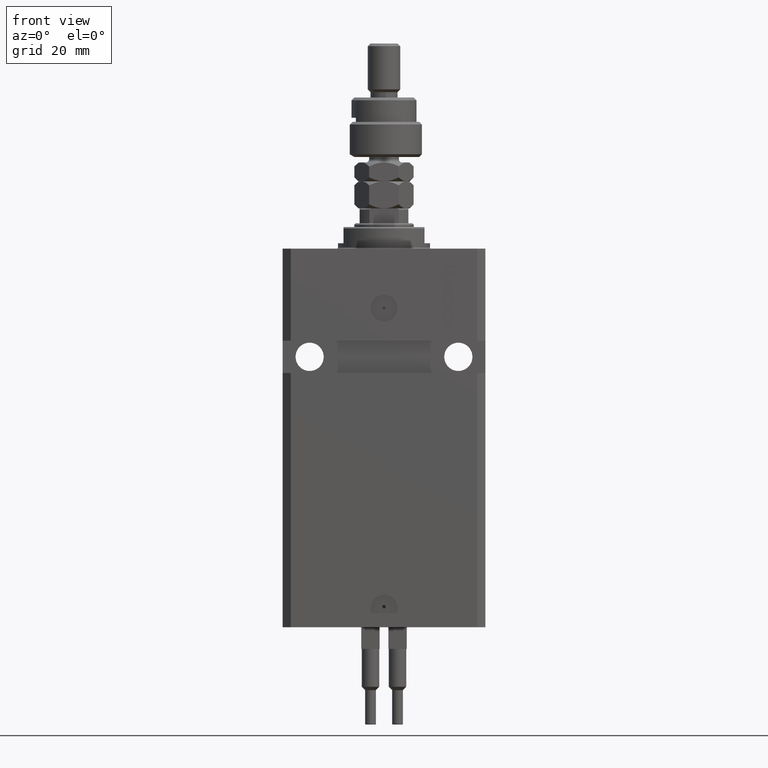
[diagram: clean part render]
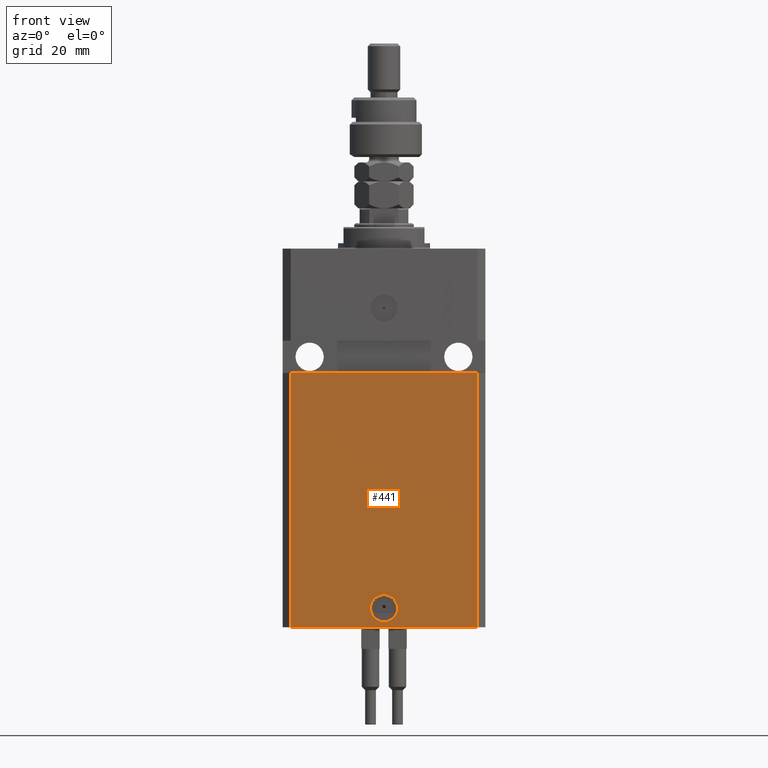
[diagram: same view with one face highlighted and labeled with its STEP entity id]
A machine part, front view. The second image highlights one B-rep face of the part: STEP entity #441.
In plain terms, the highlighted planar face has unit normal (0, -1, 0).
Its self-contained STEP definition (entity closure, byte-faithful):
#25 = LINE ( 'NONE', #23462, #49962 ) ;
#163 = LINE ( 'NONE', #34481, #39284 ) ;
#441 = ADVANCED_FACE ( 'NONE', ( #40698, #21087 ), #36580, .T. ) ;
#3952 = CARTESIAN_POINT ( 'NONE',  ( 34.49999999999999289, -27.49999999999999645, -140.0000000000000000 ) ) ;
#5964 = EDGE_CURVE ( 'NONE', #45224, #33115, #25, .T. ) ;
#7289 = ORIENTED_EDGE ( 'NONE', *, *, #5964, .T. ) ;
#8268 = DIRECTION ( 'NONE',  ( 1.000000000000000000, 0.000000000000000000, 0.000000000000000000 ) ) ;
#10651 = AXIS2_PLACEMENT_3D ( 'NONE', #44828, #25454, #28577 ) ;
#11953 = EDGE_CURVE ( 'NONE', #26499, #26785, #28668, .T. ) ;
#13488 = CIRCLE ( 'NONE', #33216, 5.000000000000006217 ) ;
#13688 = DIRECTION ( 'NONE',  ( 1.000000000000000000, 9.251858538542972814E-17, 9.251858538542972814E-17 ) ) ;
#16017 = DIRECTION ( 'NONE',  ( 0.000000000000000000, 0.000000000000000000, 1.000000000000000000 ) ) ;
#16042 = VECTOR ( 'NONE', #8268, 1000.000000000000000 ) ;
#18370 = DIRECTION ( 'NONE',  ( 1.176083712526788232E-16, -1.000000000000000000, 0.000000000000000000 ) ) ;
#19534 = ORIENTED_EDGE ( 'NONE', *, *, #30576, .F. ) ;
#19544 = ORIENTED_EDGE ( 'NONE', *, *, #40344, .F. ) ;
#21087 = FACE_OUTER_BOUND ( 'NONE', #48549, .T. ) ;
#22486 = DIRECTION ( 'NONE',  ( 1.000000000000000000, 0.000000000000000000, 0.000000000000000000 ) ) ;
#22786 = ORIENTED_EDGE ( 'NONE', *, *, #11953, .F. ) ;
#23462 = CARTESIAN_POINT ( 'NONE',  ( 34.49999999999999289, -27.49999999999999645, -140.0000000000000000 ) ) ;
#23913 = CARTESIAN_POINT ( 'NONE',  ( -5.000000000000006217, -27.49999999999999645, -133.0000000000000000 ) ) ;
#24092 = CARTESIAN_POINT ( 'NONE',  ( -34.49999999999998579, -27.50000000000000000, -46.00000000000000000 ) ) ;
#25454 = DIRECTION ( 'NONE',  ( 0.000000000000000000, -1.000000000000000000, 0.000000000000000000 ) ) ;
#26499 = VERTEX_POINT ( 'NONE', #23913 ) ;
#26785 = VERTEX_POINT ( 'NONE', #27999 ) ;
#27999 = CARTESIAN_POINT ( 'NONE',  ( 5.000000000000006217, -27.49999999999999645, -133.0000000000000000 ) ) ;
#28577 = DIRECTION ( 'NONE',  ( 0.000000000000000000, -0.000000000000000000, -1.000000000000000000 ) ) ;
#28668 = CIRCLE ( 'NONE', #41866, 5.000000000000006217 ) ;
#30447 = CARTESIAN_POINT ( 'NONE',  ( 0.000000000000000000, -27.49999999999999645, -133.0000000000000000 ) ) ;
#30576 = EDGE_CURVE ( 'NONE', #26785, #26499, #13488, .T. ) ;
#31295 = ORIENTED_EDGE ( 'NONE', *, *, #33639, .T. ) ;
#31393 = ORIENTED_EDGE ( 'NONE', *, *, #42279, .F. ) ;
#31902 = VERTEX_POINT ( 'NONE', #43188 ) ;
#31958 = CARTESIAN_POINT ( 'NONE',  ( -34.49999999999998579, -27.49999999999999645, -140.0000000000000000 ) ) ;
#33115 = VERTEX_POINT ( 'NONE', #43761 ) ;
#33216 = AXIS2_PLACEMENT_3D ( 'NONE', #30447, #33545, #49796 ) ;
#33255 = LINE ( 'NONE', #49002, #48308 ) ;
#33545 = DIRECTION ( 'NONE',  ( 1.176083712526788232E-16, -1.000000000000000000, 0.000000000000000000 ) ) ;
#33639 = EDGE_CURVE ( 'NONE', #31902, #45224, #40218, .T. ) ;
#34481 = CARTESIAN_POINT ( 'NONE',  ( -34.49999999999998579, -27.49999999999999645, -140.0000000000000000 ) ) ;
#36580 = PLANE ( 'NONE',  #10651 ) ;
#39112 = DIRECTION ( 'NONE',  ( 0.000000000000000000, 0.000000000000000000, 1.000000000000000000 ) ) ;
#39284 = VECTOR ( 'NONE', #39112, 1000.000000000000000 ) ;
#40218 = LINE ( 'NONE', #31958, #16042 ) ;
#40344 = EDGE_CURVE ( 'NONE', #48090, #33115, #33255, .T. ) ;
#40698 = FACE_BOUND ( 'NONE', #42515, .T. ) ;
#41866 = AXIS2_PLACEMENT_3D ( 'NONE', #50086, #18370, #22486 ) ;
#42279 = EDGE_CURVE ( 'NONE', #31902, #48090, #163, .T. ) ;
#42515 = EDGE_LOOP ( 'NONE', ( #19534, #22786 ) ) ;
#43188 = CARTESIAN_POINT ( 'NONE',  ( -34.49999999999998579, -27.49999999999999645, -140.0000000000000000 ) ) ;
#43761 = CARTESIAN_POINT ( 'NONE',  ( 34.49999999999999289, -27.49999999999999289, -45.99999999999999289 ) ) ;
#44828 = CARTESIAN_POINT ( 'NONE',  ( -34.49999999999998579, -27.49999999999999645, -140.0000000000000000 ) ) ;
#45224 = VERTEX_POINT ( 'NONE', #3952 ) ;
#48090 = VERTEX_POINT ( 'NONE', #24092 ) ;
#48308 = VECTOR ( 'NONE', #13688, 1000.000000000000000 ) ;
#48549 = EDGE_LOOP ( 'NONE', ( #19544, #31393, #31295, #7289 ) ) ;
#49002 = CARTESIAN_POINT ( 'NONE',  ( -37.50000000000000000, -27.50000000000000000, -46.00000000000000000 ) ) ;
#49796 = DIRECTION ( 'NONE',  ( 1.000000000000000000, 0.000000000000000000, 0.000000000000000000 ) ) ;
#49962 = VECTOR ( 'NONE', #16017, 1000.000000000000000 ) ;
#50086 = CARTESIAN_POINT ( 'NONE',  ( 0.000000000000000000, -27.49999999999999645, -133.0000000000000000 ) ) ;